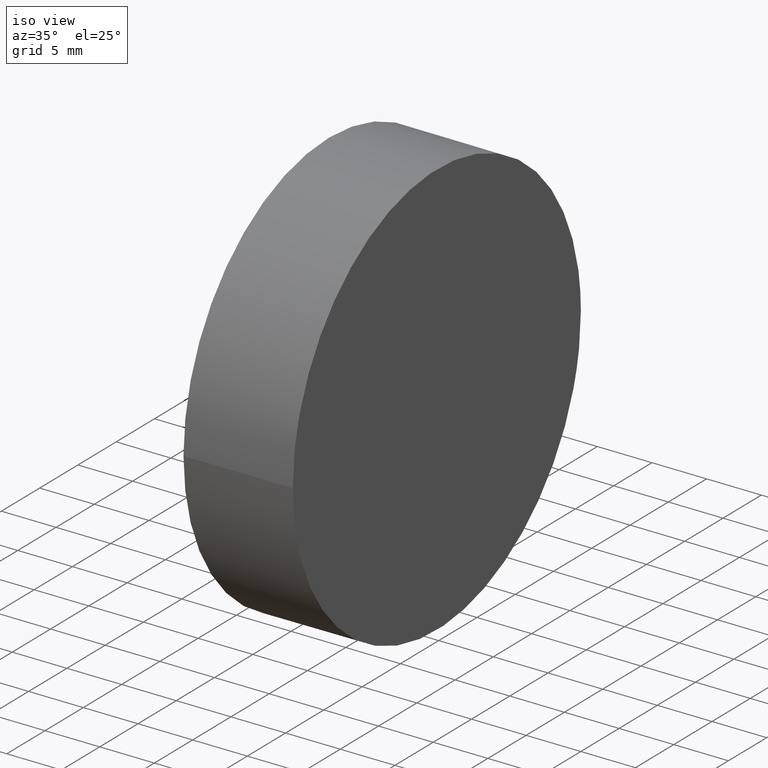
[diagram: clean part render]
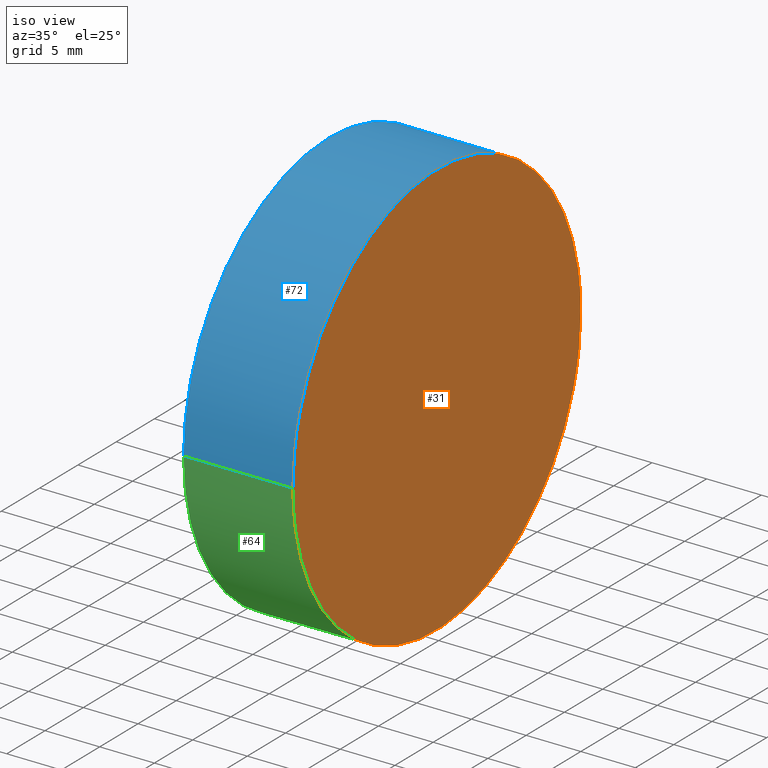
[diagram: same view with three faces highlighted in distinct colors, each labeled with its STEP entity id]
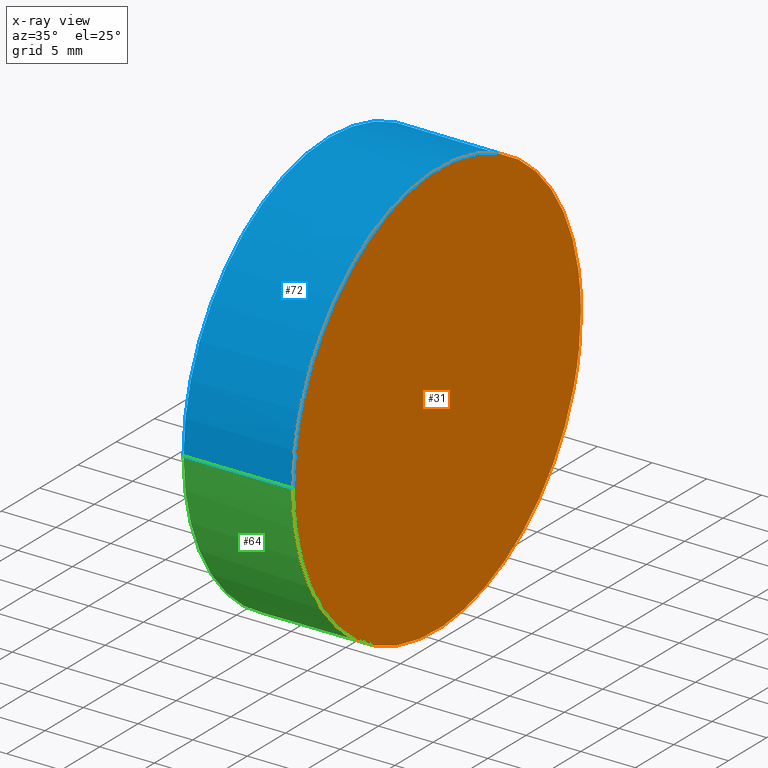
[diagram: x-ray of the same camera — body ghosted, the three highlighted faces saturated]
A machine part, iso view with three faces highlighted in distinct colors.
The next image is the same camera in x-ray (body ghosted, the three faces saturated) — at least one of them is partly hidden behind the body in this view.
Their STEP definitions:

[orange] entity #31 — the highlighted planar face has unit normal (-1, -0.0087, 0).
#13 = DIRECTION ( 'NONE',  ( 0.008726535498366980200, -0.9999619230641713100, 0.0000000000000000000 ) ) ;
#15 = CARTESIAN_POINT ( 'NONE',  ( 10.00000000000000500, -19.04999999999999700, -19.04999999999999700 ) ) ;
#17 = CARTESIAN_POINT ( 'NONE',  ( 10.00000000000000400, -19.04999999999999700, 19.05000000000000100 ) ) ;
#19 = PLANE ( 'NONE',  #106 ) ;
#26 = CARTESIAN_POINT ( 'NONE',  ( 9.667506337172358900, 19.04999999999999700, 19.05000000000000400 ) ) ;
#27 = EDGE_CURVE ( 'NONE', #62, #48, #96, .T. ) ;
#29 =( BOUNDED_CURVE ( )  B_SPLINE_CURVE ( 3, ( #122, #60, #140, #26 ),
 .UNSPECIFIED., .F., .F. ) 
 B_SPLINE_CURVE_WITH_KNOTS ( ( 4, 4 ),
 ( 3.141592653589793100, 6.283185307179586200 ),
 .UNSPECIFIED. ) 
 CURVE ( )  GEOMETRIC_REPRESENTATION_ITEM ( )  RATIONAL_B_SPLINE_CURVE ( ( 1.000000000000000000, 0.3333333333333333700, 0.3333333333333333700, 1.000000000000000000 ) ) 
 REPRESENTATION_ITEM ( '' )  );
#31 = ADVANCED_FACE ( 'NONE', ( #125 ), #19, .F. ) ;
#43 = CARTESIAN_POINT ( 'NONE',  ( 9.667506337172358900, 19.04999999999999700, 19.05000000000000400 ) ) ;
#48 = VERTEX_POINT ( 'NONE', #17 ) ;
#60 = CARTESIAN_POINT ( 'NONE',  ( 10.00000000000000500, -19.05000000000000400, 57.14999999999999900 ) ) ;
#62 = VERTEX_POINT ( 'NONE', #74 ) ;
#69 = CARTESIAN_POINT ( 'NONE',  ( 10.00000000000000500, -19.05000000000000400, 38.10000000000000100 ) ) ;
#74 = CARTESIAN_POINT ( 'NONE',  ( 9.667506337172358900, 19.04999999999999700, 19.05000000000000400 ) ) ;
#83 = ORIENTED_EDGE ( 'NONE', *, *, #133, .F. ) ;
#96 =( BOUNDED_CURVE ( )  B_SPLINE_CURVE ( 3, ( #43, #99, #15, #115 ),
 .UNSPECIFIED., .F., .T. ) 
 B_SPLINE_CURVE_WITH_KNOTS ( ( 4, 4 ),
 ( 0.0000000000000000000, 3.141592653589793100 ),
 .UNSPECIFIED. ) 
 CURVE ( )  GEOMETRIC_REPRESENTATION_ITEM ( )  RATIONAL_B_SPLINE_CURVE ( ( 1.000000000000000000, 0.3333333333333333700, 0.3333333333333333700, 1.000000000000000000 ) ) 
 REPRESENTATION_ITEM ( '' )  );
#99 = CARTESIAN_POINT ( 'NONE',  ( 9.667506337172358900, 19.04999999999999700, -19.04999999999999400 ) ) ;
#104 = ORIENTED_EDGE ( 'NONE', *, *, #27, .F. ) ;
#106 = AXIS2_PLACEMENT_3D ( 'NONE', #69, #134, #13 ) ;
#115 = CARTESIAN_POINT ( 'NONE',  ( 10.00000000000000400, -19.04999999999999700, 19.05000000000000100 ) ) ;
#118 = EDGE_LOOP ( 'NONE', ( #83, #104 ) ) ;
#122 = CARTESIAN_POINT ( 'NONE',  ( 10.00000000000000400, -19.04999999999999700, 19.05000000000000100 ) ) ;
#125 = FACE_OUTER_BOUND ( 'NONE', #118, .T. ) ;
#133 = EDGE_CURVE ( 'NONE', #48, #62, #29, .T. ) ;
#134 = DIRECTION ( 'NONE',  ( -0.9999619230641714200, -0.008726535498366981900, 0.0000000000000000000 ) ) ;
#140 = CARTESIAN_POINT ( 'NONE',  ( 9.667506337172358900, 19.04999999999999700, 57.14999999999999900 ) ) ;

[blue] entity #72 — the highlighted cylindrical surface (partial cylindrical patch) has radius 19.05 mm, axis along (-1, -0, -0).
#5 = VECTOR ( 'NONE', #108, 1000.000000000000000 ) ;
#9 = VERTEX_POINT ( 'NONE', #20 ) ;
#16 = EDGE_LOOP ( 'NONE', ( #110, #57, #95, #94 ) ) ;
#17 = CARTESIAN_POINT ( 'NONE',  ( 10.00000000000000400, -19.04999999999999700, 19.05000000000000100 ) ) ;
#18 = DIRECTION ( 'NONE',  ( 9.106159978880878600E-017, -1.000000000000000000, 0.0000000000000000000 ) ) ;
#20 = CARTESIAN_POINT ( 'NONE',  ( -2.332952152375708000E-015, 19.04999999999999700, 19.05000000000000400 ) ) ;
#21 = CARTESIAN_POINT ( 'NONE',  ( 10.00000000000000000, 1.224646799147353300E-015, 19.05000000000000100 ) ) ;
#26 = CARTESIAN_POINT ( 'NONE',  ( 9.667506337172358900, 19.04999999999999700, 19.05000000000000400 ) ) ;
#29 =( BOUNDED_CURVE ( )  B_SPLINE_CURVE ( 3, ( #122, #60, #140, #26 ),
 .UNSPECIFIED., .F., .F. ) 
 B_SPLINE_CURVE_WITH_KNOTS ( ( 4, 4 ),
 ( 3.141592653589793100, 6.283185307179586200 ),
 .UNSPECIFIED. ) 
 CURVE ( )  GEOMETRIC_REPRESENTATION_ITEM ( )  RATIONAL_B_SPLINE_CURVE ( ( 1.000000000000000000, 0.3333333333333333700, 0.3333333333333333700, 1.000000000000000000 ) ) 
 REPRESENTATION_ITEM ( '' )  );
#30 = DIRECTION ( 'NONE',  ( -1.000000000000000000, -1.224646799147353500E-016, 1.232595164407830900E-032 ) ) ;
#36 = FACE_OUTER_BOUND ( 'NONE', #16, .T. ) ;
#40 = EDGE_CURVE ( 'NONE', #62, #9, #107, .T. ) ;
#48 = VERTEX_POINT ( 'NONE', #17 ) ;
#57 = ORIENTED_EDGE ( 'NONE', *, *, #40, .T. ) ;
#60 = CARTESIAN_POINT ( 'NONE',  ( 10.00000000000000500, -19.05000000000000400, 57.14999999999999900 ) ) ;
#62 = VERTEX_POINT ( 'NONE', #74 ) ;
#63 = DIRECTION ( 'NONE',  ( 1.224646799147353500E-016, -1.000000000000000000, 0.0000000000000000000 ) ) ;
#70 = DIRECTION ( 'NONE',  ( -1.000000000000000000, -1.224646799147353200E-016, -0.0000000000000000000 ) ) ;
#72 = ADVANCED_FACE ( 'NONE', ( #36 ), #117, .T. ) ;
#74 = CARTESIAN_POINT ( 'NONE',  ( 9.667506337172358900, 19.04999999999999700, 19.05000000000000400 ) ) ;
#78 = AXIS2_PLACEMENT_3D ( 'NONE', #21, #137, #18 ) ;
#79 = EDGE_CURVE ( 'NONE', #48, #82, #86, .T. ) ;
#81 = CARTESIAN_POINT ( 'NONE',  ( 0.0000000000000000000, -1.880790961315660000E-034, 19.05000000000000100 ) ) ;
#82 = VERTEX_POINT ( 'NONE', #126 ) ;
#86 = LINE ( 'NONE', #123, #113 ) ;
#93 = CIRCLE ( 'NONE', #128, 19.04999999999999700 ) ;
#94 = ORIENTED_EDGE ( 'NONE', *, *, #79, .F. ) ;
#95 = ORIENTED_EDGE ( 'NONE', *, *, #114, .F. ) ;
#98 = CARTESIAN_POINT ( 'NONE',  ( 9.999999999999998200, 19.04999999999999700, 19.05000000000000400 ) ) ;
#107 = LINE ( 'NONE', #98, #5 ) ;
#108 = DIRECTION ( 'NONE',  ( -1.000000000000000000, -1.224646799147353200E-016, -0.0000000000000000000 ) ) ;
#110 = ORIENTED_EDGE ( 'NONE', *, *, #133, .T. ) ;
#113 = VECTOR ( 'NONE', #70, 1000.000000000000000 ) ;
#114 = EDGE_CURVE ( 'NONE', #82, #9, #93, .T. ) ;
#117 = CYLINDRICAL_SURFACE ( 'NONE', #78, 19.04999999999999700 ) ;
#122 = CARTESIAN_POINT ( 'NONE',  ( 10.00000000000000400, -19.04999999999999700, 19.05000000000000100 ) ) ;
#123 = CARTESIAN_POINT ( 'NONE',  ( 10.00000000000000200, -19.04999999999999700, 19.05000000000000100 ) ) ;
#126 = CARTESIAN_POINT ( 'NONE',  ( 2.332952152375708000E-015, -19.04999999999999700, 19.05000000000000100 ) ) ;
#128 = AXIS2_PLACEMENT_3D ( 'NONE', #81, #30, #63 ) ;
#133 = EDGE_CURVE ( 'NONE', #48, #62, #29, .T. ) ;
#137 = DIRECTION ( 'NONE',  ( -1.000000000000000000, -1.224646799147353200E-016, -0.0000000000000000000 ) ) ;
#140 = CARTESIAN_POINT ( 'NONE',  ( 9.667506337172358900, 19.04999999999999700, 57.14999999999999900 ) ) ;

[green] entity #64 — the highlighted cylindrical surface (partial cylindrical patch) has radius 19.05 mm, axis along (-1, -0, -0).
#1 = DIRECTION ( 'NONE',  ( 1.224646799147353500E-016, -1.000000000000000000, 0.0000000000000000000 ) ) ;
#5 = VECTOR ( 'NONE', #108, 1000.000000000000000 ) ;
#6 = CARTESIAN_POINT ( 'NONE',  ( 0.0000000000000000000, -1.880790961315660000E-034, 19.05000000000000100 ) ) ;
#9 = VERTEX_POINT ( 'NONE', #20 ) ;
#12 = EDGE_LOOP ( 'NONE', ( #45, #56, #25, #130 ) ) ;
#15 = CARTESIAN_POINT ( 'NONE',  ( 10.00000000000000500, -19.04999999999999700, -19.04999999999999700 ) ) ;
#17 = CARTESIAN_POINT ( 'NONE',  ( 10.00000000000000400, -19.04999999999999700, 19.05000000000000100 ) ) ;
#20 = CARTESIAN_POINT ( 'NONE',  ( -2.332952152375708000E-015, 19.04999999999999700, 19.05000000000000400 ) ) ;
#22 = AXIS2_PLACEMENT_3D ( 'NONE', #6, #33, #1 ) ;
#25 = ORIENTED_EDGE ( 'NONE', *, *, #79, .T. ) ;
#27 = EDGE_CURVE ( 'NONE', #62, #48, #96, .T. ) ;
#33 = DIRECTION ( 'NONE',  ( -1.000000000000000000, -1.224646799147353500E-016, 1.232595164407830900E-032 ) ) ;
#39 = FACE_OUTER_BOUND ( 'NONE', #12, .T. ) ;
#40 = EDGE_CURVE ( 'NONE', #62, #9, #107, .T. ) ;
#43 = CARTESIAN_POINT ( 'NONE',  ( 9.667506337172358900, 19.04999999999999700, 19.05000000000000400 ) ) ;
#45 = ORIENTED_EDGE ( 'NONE', *, *, #40, .F. ) ;
#48 = VERTEX_POINT ( 'NONE', #17 ) ;
#49 = CARTESIAN_POINT ( 'NONE',  ( 10.00000000000000000, 1.224646799147353300E-015, 19.05000000000000100 ) ) ;
#54 = AXIS2_PLACEMENT_3D ( 'NONE', #49, #61, #65 ) ;
#56 = ORIENTED_EDGE ( 'NONE', *, *, #27, .T. ) ;
#61 = DIRECTION ( 'NONE',  ( -1.000000000000000000, -1.224646799147353200E-016, -0.0000000000000000000 ) ) ;
#62 = VERTEX_POINT ( 'NONE', #74 ) ;
#64 = ADVANCED_FACE ( 'NONE', ( #39 ), #129, .T. ) ;
#65 = DIRECTION ( 'NONE',  ( 9.106159978880878600E-017, -1.000000000000000000, 0.0000000000000000000 ) ) ;
#70 = DIRECTION ( 'NONE',  ( -1.000000000000000000, -1.224646799147353200E-016, -0.0000000000000000000 ) ) ;
#74 = CARTESIAN_POINT ( 'NONE',  ( 9.667506337172358900, 19.04999999999999700, 19.05000000000000400 ) ) ;
#79 = EDGE_CURVE ( 'NONE', #48, #82, #86, .T. ) ;
#82 = VERTEX_POINT ( 'NONE', #126 ) ;
#86 = LINE ( 'NONE', #123, #113 ) ;
#96 =( BOUNDED_CURVE ( )  B_SPLINE_CURVE ( 3, ( #43, #99, #15, #115 ),
 .UNSPECIFIED., .F., .T. ) 
 B_SPLINE_CURVE_WITH_KNOTS ( ( 4, 4 ),
 ( 0.0000000000000000000, 3.141592653589793100 ),
 .UNSPECIFIED. ) 
 CURVE ( )  GEOMETRIC_REPRESENTATION_ITEM ( )  RATIONAL_B_SPLINE_CURVE ( ( 1.000000000000000000, 0.3333333333333333700, 0.3333333333333333700, 1.000000000000000000 ) ) 
 REPRESENTATION_ITEM ( '' )  );
#98 = CARTESIAN_POINT ( 'NONE',  ( 9.999999999999998200, 19.04999999999999700, 19.05000000000000400 ) ) ;
#99 = CARTESIAN_POINT ( 'NONE',  ( 9.667506337172358900, 19.04999999999999700, -19.04999999999999400 ) ) ;
#101 = CIRCLE ( 'NONE', #22, 19.04999999999999700 ) ;
#107 = LINE ( 'NONE', #98, #5 ) ;
#108 = DIRECTION ( 'NONE',  ( -1.000000000000000000, -1.224646799147353200E-016, -0.0000000000000000000 ) ) ;
#113 = VECTOR ( 'NONE', #70, 1000.000000000000000 ) ;
#115 = CARTESIAN_POINT ( 'NONE',  ( 10.00000000000000400, -19.04999999999999700, 19.05000000000000100 ) ) ;
#123 = CARTESIAN_POINT ( 'NONE',  ( 10.00000000000000200, -19.04999999999999700, 19.05000000000000100 ) ) ;
#126 = CARTESIAN_POINT ( 'NONE',  ( 2.332952152375708000E-015, -19.04999999999999700, 19.05000000000000100 ) ) ;
#129 = CYLINDRICAL_SURFACE ( 'NONE', #54, 19.04999999999999700 ) ;
#130 = ORIENTED_EDGE ( 'NONE', *, *, #131, .F. ) ;
#131 = EDGE_CURVE ( 'NONE', #9, #82, #101, .T. ) ;